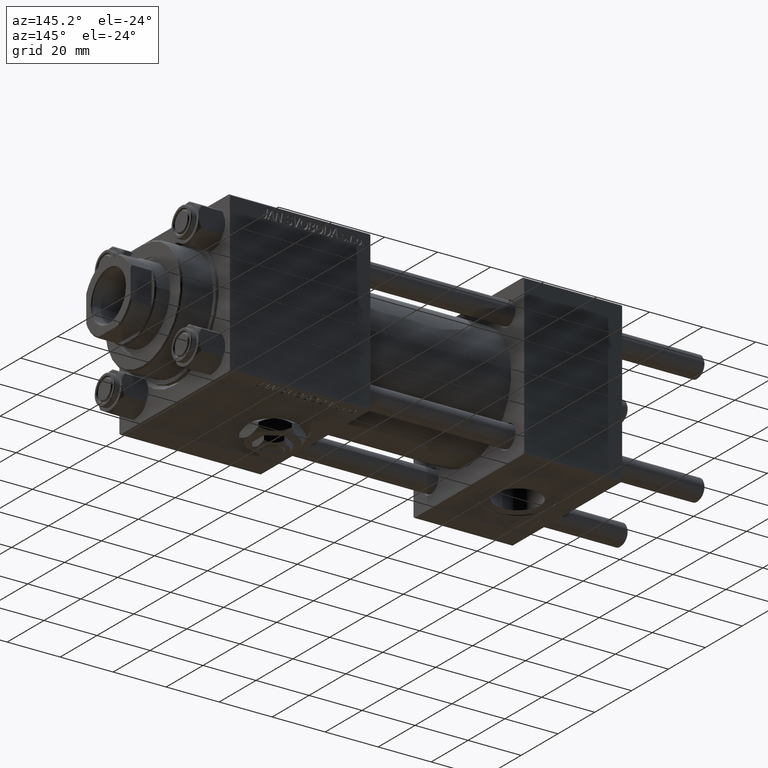
[diagram: clean part render]
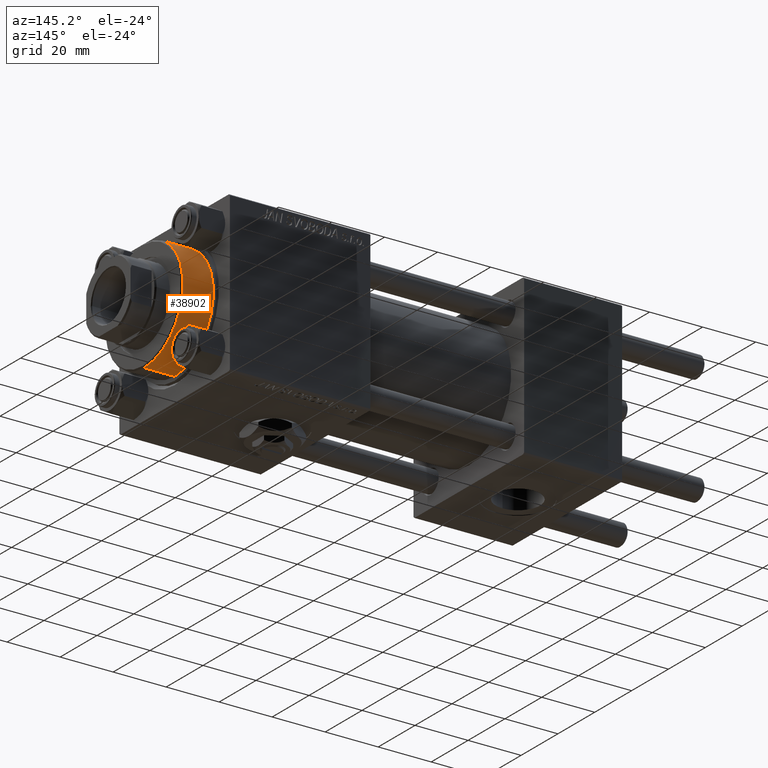
[diagram: same view with one face highlighted and labeled with its STEP entity id]
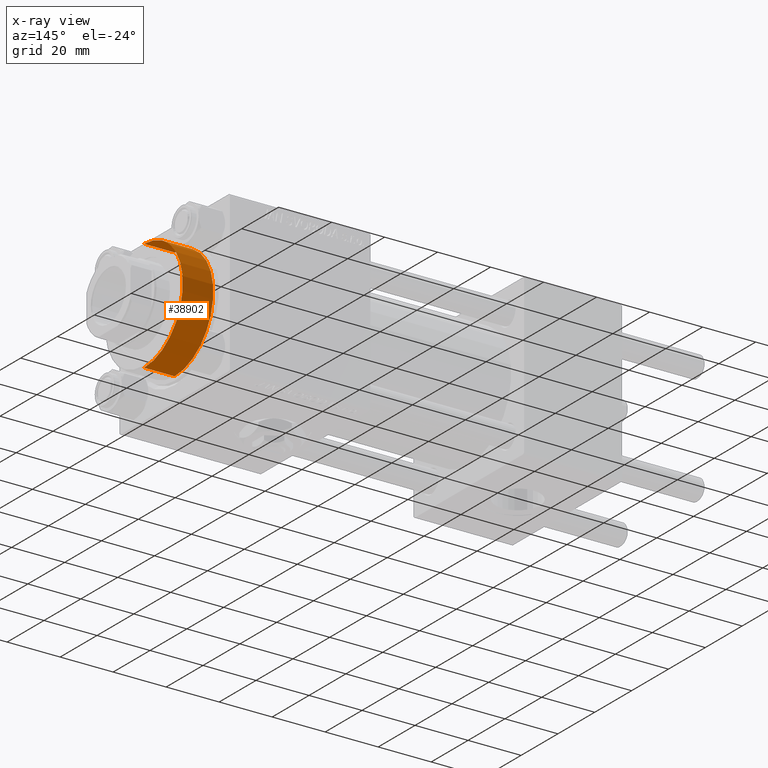
[diagram: x-ray of the same camera — body ghosted, the highlighted face saturated]
A machine part, auxiliary view. The second image highlights one B-rep face of the part: STEP entity #38902.
The next image is the same camera in x-ray: the body ghosted, the highlighted face saturated — about 0% of this face is hidden behind the body in this view.
In plain terms, the highlighted cylindrical surface (partial cylindrical patch) has radius 21 mm, axis along (-1, -0, 0).
Its self-contained STEP definition (entity closure, byte-faithful):
#690 = VERTEX_POINT ( 'NONE', #29675 ) ;
#3478 = ORIENTED_EDGE ( 'NONE', *, *, #17737, .T. ) ;
#4698 = EDGE_CURVE ( 'NONE', #690, #34176, #8890, .T. ) ;
#5430 = DIRECTION ( 'NONE',  ( -0.000000000000000000, -0.000000000000000000, -1.000000000000000000 ) ) ;
#6612 = DIRECTION ( 'NONE',  ( -0.000000000000000000, -0.000000000000000000, -1.000000000000000000 ) ) ;
#7728 = AXIS2_PLACEMENT_3D ( 'NONE', #22006, #6612, #9751 ) ;
#8430 = DIRECTION ( 'NONE',  ( -0.000000000000000000, -0.000000000000000000, -1.000000000000000000 ) ) ;
#8890 = CIRCLE ( 'NONE', #38026, 21.00000000000000000 ) ;
#9714 = ORIENTED_EDGE ( 'NONE', *, *, #31329, .F. ) ;
#9751 = DIRECTION ( 'NONE',  ( -1.000000000000000000, 0.000000000000000000, 0.000000000000000000 ) ) ;
#10361 = LINE ( 'NONE', #26047, #33887 ) ;
#12261 = EDGE_LOOP ( 'NONE', ( #12735, #3478, #38323, #9714 ) ) ;
#12561 = VECTOR ( 'NONE', #8430, 1000.000000000000000 ) ;
#12735 = ORIENTED_EDGE ( 'NONE', *, *, #21009, .T. ) ;
#16085 = DIRECTION ( 'NONE',  ( 0.000000000000000000, 0.000000000000000000, -1.000000000000000000 ) ) ;
#16249 = LINE ( 'NONE', #49113, #12561 ) ;
#16791 = VERTEX_POINT ( 'NONE', #18453 ) ;
#17737 = EDGE_CURVE ( 'NONE', #40235, #690, #10361, .T. ) ;
#18083 = CYLINDRICAL_SURFACE ( 'NONE', #7728, 21.00000000000000000 ) ;
#18453 = CARTESIAN_POINT ( 'NONE',  ( -21.00000000000000000, 0.000000000000000000, 40.19999999999998863 ) ) ;
#21009 = EDGE_CURVE ( 'NONE', #16791, #40235, #38168, .T. ) ;
#22006 = CARTESIAN_POINT ( 'NONE',  ( 0.000000000000000000, 0.000000000000000000, 40.70000000000000284 ) ) ;
#22255 = DIRECTION ( 'NONE',  ( 0.000000000000000000, 0.000000000000000000, 1.000000000000000000 ) ) ;
#22523 = DIRECTION ( 'NONE',  ( 1.000000000000000000, 0.000000000000000000, 0.000000000000000000 ) ) ;
#26047 = CARTESIAN_POINT ( 'NONE',  ( 21.00000000000000000, 2.571758278209441661E-15, 40.70000000000000284 ) ) ;
#26450 = FACE_OUTER_BOUND ( 'NONE', #12261, .T. ) ;
#29675 = CARTESIAN_POINT ( 'NONE',  ( 21.00000000000000000, 2.571758278209441661E-15, 28.69999999999999929 ) ) ;
#31329 = EDGE_CURVE ( 'NONE', #16791, #34176, #16249, .T. ) ;
#33887 = VECTOR ( 'NONE', #5430, 1000.000000000000000 ) ;
#34176 = VERTEX_POINT ( 'NONE', #50356 ) ;
#35669 = DIRECTION ( 'NONE',  ( 1.000000000000000000, 0.000000000000000000, 0.000000000000000000 ) ) ;
#38026 = AXIS2_PLACEMENT_3D ( 'NONE', #42064, #22255, #22523 ) ;
#38168 = CIRCLE ( 'NONE', #42352, 21.00000000000000000 ) ;
#38323 = ORIENTED_EDGE ( 'NONE', *, *, #4698, .T. ) ;
#38902 = ADVANCED_FACE ( 'NONE', ( #26450 ), #18083, .T. ) ;
#40235 = VERTEX_POINT ( 'NONE', #42956 ) ;
#42064 = CARTESIAN_POINT ( 'NONE',  ( 0.000000000000000000, 0.000000000000000000, 28.69999999999999929 ) ) ;
#42352 = AXIS2_PLACEMENT_3D ( 'NONE', #51315, #16085, #35669 ) ;
#42956 = CARTESIAN_POINT ( 'NONE',  ( 21.00000000000000000, 2.571758278209441661E-15, 40.19999999999998863 ) ) ;
#49113 = CARTESIAN_POINT ( 'NONE',  ( -21.00000000000000000, 0.000000000000000000, 40.70000000000000284 ) ) ;
#50356 = CARTESIAN_POINT ( 'NONE',  ( -21.00000000000000000, 0.000000000000000000, 28.69999999999999929 ) ) ;
#51315 = CARTESIAN_POINT ( 'NONE',  ( 0.000000000000000000, 0.000000000000000000, 40.19999999999998863 ) ) ;